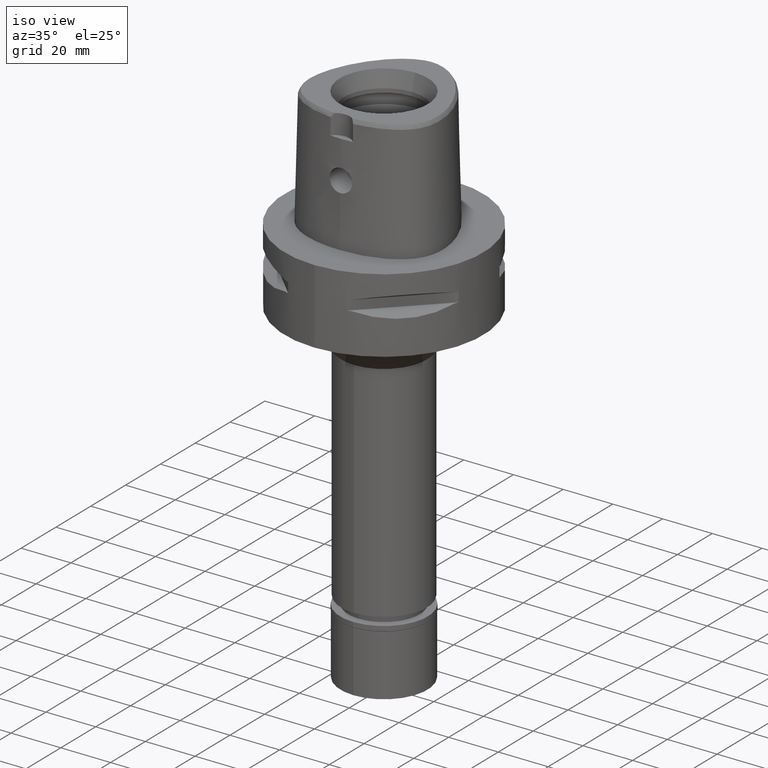
[diagram: clean part render]
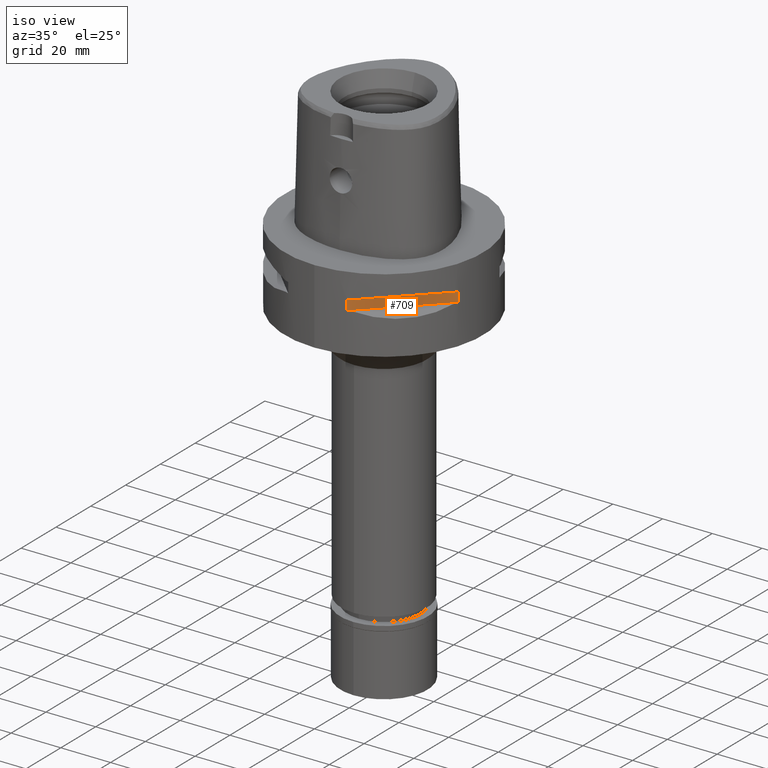
[diagram: same view with one face highlighted and labeled with its STEP entity id]
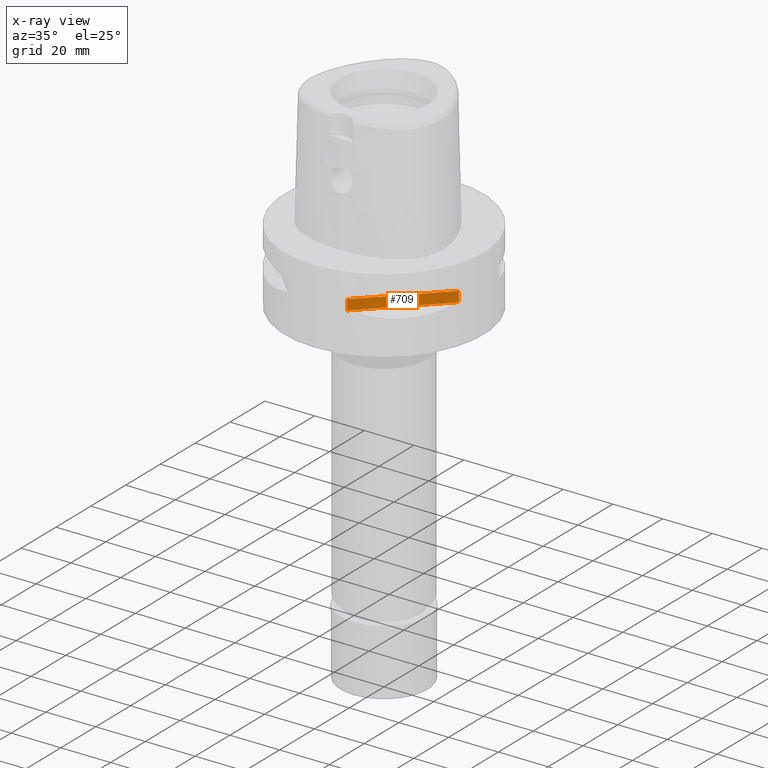
[diagram: x-ray of the same camera — body ghosted, the highlighted face saturated]
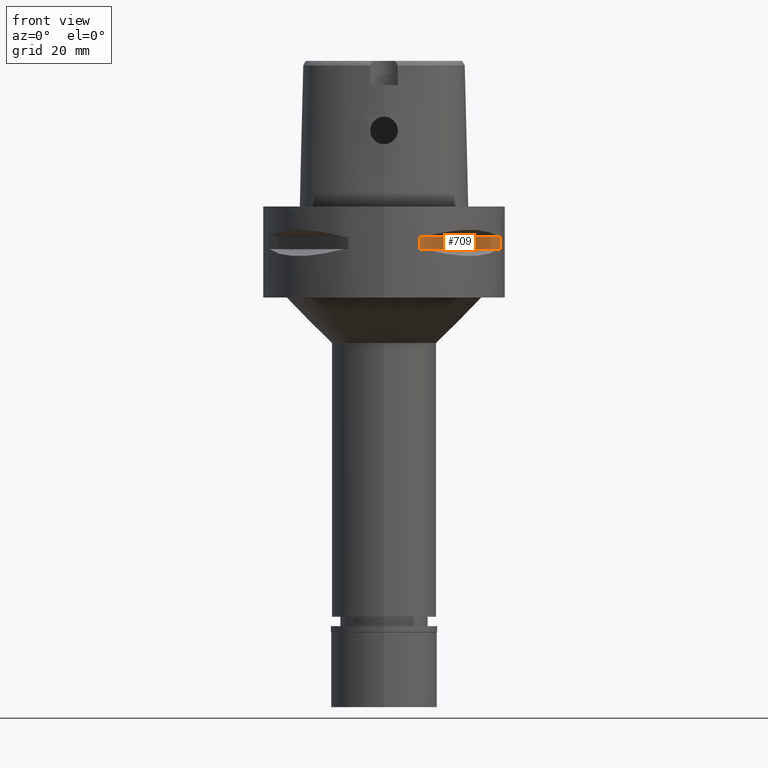
[diagram: same view with one face highlighted and labeled with its STEP entity id]
A machine part, iso view. The second image highlights one B-rep face of the part: STEP entity #709.
The next image is the same camera in x-ray: the body ghosted, the highlighted face saturated — about 0% of this face is hidden behind the body in this view.
A second angle (front view) of the same face is appended — the face is thin or edge-on in the first view.
In plain terms, the highlighted planar face has unit normal (-0.7071, 0.7071, 0).
Its self-contained STEP definition (entity closure, byte-faithful):
#119 = DIRECTION ( 'NONE',  ( 0.7071067811865474617, 0.7071067811865474617, 0.0000000000000000000 ) ) ;
#144 = ORIENTED_EDGE ( 'NONE', *, *, #903, .F. ) ;
#374 = CARTESIAN_POINT ( 'NONE',  ( 38.23211342708000160, -11.76033600280999991, -9.950000000000001066 ) ) ;
#414 = FACE_OUTER_BOUND ( 'NONE', #4506, .T. ) ;
#598 = CARTESIAN_POINT ( 'NONE',  ( 11.76033600280999991, -38.23211342708000160, -9.950000000000001066 ) ) ;
#687 = VECTOR ( 'NONE', #3001, 1000.000000000000114 ) ;
#691 = VECTOR ( 'NONE', #119, 1000.000000000000114 ) ;
#709 = ADVANCED_FACE ( 'NONE', ( #414 ), #2461, .F. ) ;
#903 = EDGE_CURVE ( 'NONE', #4542, #4298, #1415, .T. ) ;
#965 = CARTESIAN_POINT ( 'NONE',  ( 11.76033600280999991, -38.23211342708000160, -14.05000000000000071 ) ) ;
#1242 = DIRECTION ( 'NONE',  ( -0.7071067811865475727, 0.7071067811865475727, 0.0000000000000000000 ) ) ;
#1415 = LINE ( 'NONE', #598, #687 ) ;
#1447 = EDGE_CURVE ( 'NONE', #5181, #5032, #2165, .T. ) ;
#1679 = VECTOR ( 'NONE', #2552, 1000.000000000000000 ) ;
#1771 = CARTESIAN_POINT ( 'NONE',  ( 11.76033600280999991, -38.23211342708000160, -14.05000000000000071 ) ) ;
#2165 = LINE ( 'NONE', #965, #691 ) ;
#2354 = CARTESIAN_POINT ( 'NONE',  ( 42.67389424461000402, -7.318555185280999353, -9.950000000000001066 ) ) ;
#2461 = PLANE ( 'NONE',  #2772 ) ;
#2511 = VECTOR ( 'NONE', #4208, 1000.000000000000000 ) ;
#2552 = DIRECTION ( 'NONE',  ( 0.0000000000000000000, 0.0000000000000000000, 1.000000000000000000 ) ) ;
#2710 = ORIENTED_EDGE ( 'NONE', *, *, #4480, .T. ) ;
#2772 = AXIS2_PLACEMENT_3D ( 'NONE', #2354, #1242, #4783 ) ;
#2808 = ORIENTED_EDGE ( 'NONE', *, *, #1447, .T. ) ;
#2896 = ORIENTED_EDGE ( 'NONE', *, *, #4130, .T. ) ;
#3001 = DIRECTION ( 'NONE',  ( 0.7071067811865474617, 0.7071067811865474617, 0.0000000000000000000 ) ) ;
#3118 = LINE ( 'NONE', #3902, #2511 ) ;
#3168 = CARTESIAN_POINT ( 'NONE',  ( 11.76033600280999991, -38.23211342708000160, -9.950000000000001066 ) ) ;
#3336 = LINE ( 'NONE', #4927, #1679 ) ;
#3669 = CARTESIAN_POINT ( 'NONE',  ( 38.23211342708000160, -11.76033600280999991, -14.05000000000000071 ) ) ;
#3902 = CARTESIAN_POINT ( 'NONE',  ( 11.76033600280999991, -38.23211342708000160, -9.950000000000001066 ) ) ;
#4130 = EDGE_CURVE ( 'NONE', #5032, #4298, #3336, .T. ) ;
#4208 = DIRECTION ( 'NONE',  ( 0.0000000000000000000, 0.0000000000000000000, -1.000000000000000000 ) ) ;
#4298 = VERTEX_POINT ( 'NONE', #374 ) ;
#4480 = EDGE_CURVE ( 'NONE', #4542, #5181, #3118, .T. ) ;
#4506 = EDGE_LOOP ( 'NONE', ( #144, #2710, #2808, #2896 ) ) ;
#4542 = VERTEX_POINT ( 'NONE', #3168 ) ;
#4783 = DIRECTION ( 'NONE',  ( 0.0000000000000000000, 0.0000000000000000000, 1.000000000000000000 ) ) ;
#4927 = CARTESIAN_POINT ( 'NONE',  ( 38.23211342708000160, -11.76033600280999991, -14.05000000000000071 ) ) ;
#5032 = VERTEX_POINT ( 'NONE', #3669 ) ;
#5181 = VERTEX_POINT ( 'NONE', #1771 ) ;